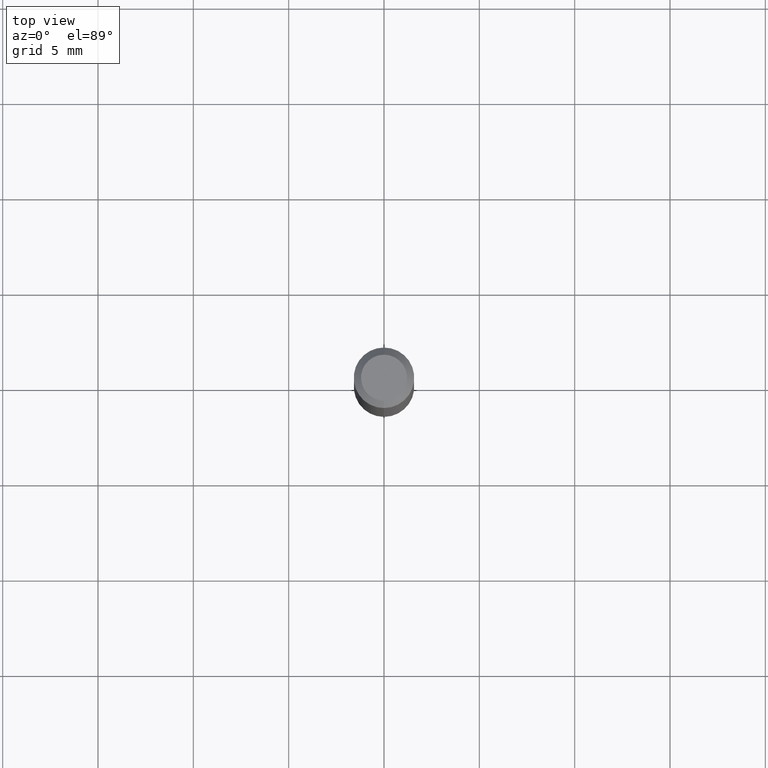
[diagram: clean part render]
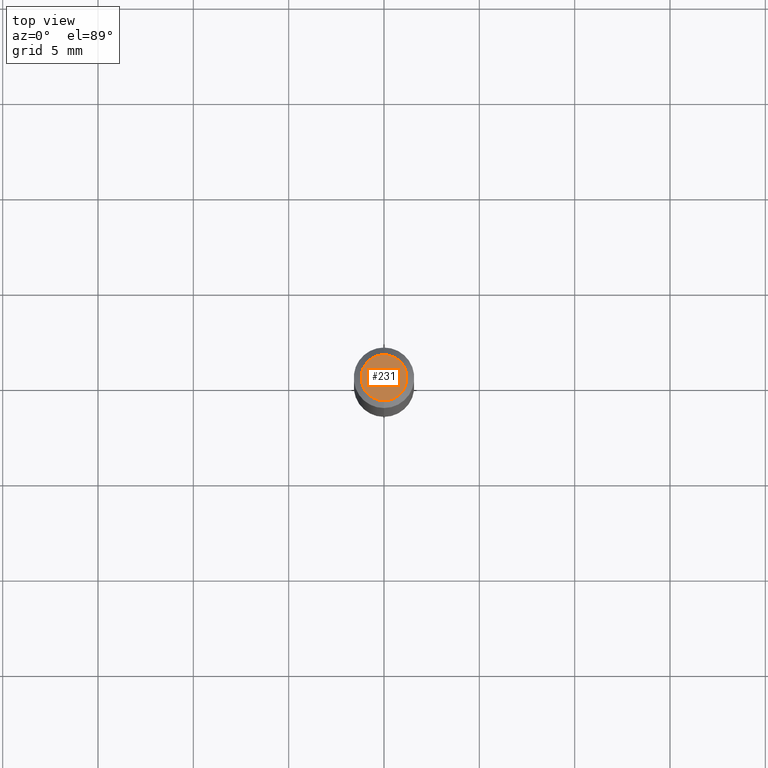
[diagram: same view with one face highlighted and labeled with its STEP entity id]
A machine part, top view. The second image highlights one B-rep face of the part: STEP entity #231.
In plain terms, the highlighted planar face has unit normal (0, -0, -1).
Its self-contained STEP definition (entity closure, byte-faithful):
#11 = CIRCLE ( 'NONE', #473, 0.04749999999999999362 ) ;
#15 = DIRECTION ( 'NONE',  ( -6.982962677686266711E-15, -1.000000000000000000, 3.491392881467327426E-15 ) ) ;
#36 = DIRECTION ( 'NONE',  ( -6.982962677686266711E-15, -1.000000000000000000, 3.491392881467327426E-15 ) ) ;
#47 = DIRECTION ( 'NONE',  ( -2.445530575640527241E-29, 3.491392881467327032E-15, 1.000000000000000000 ) ) ;
#72 = AXIS2_PLACEMENT_3D ( 'NONE', #237, #401, #36 ) ;
#140 = ORIENTED_EDGE ( 'NONE', *, *, #400, .T. ) ;
#145 = PLANE ( 'NONE',  #398 ) ;
#152 = FACE_OUTER_BOUND ( 'NONE', #482, .T. ) ;
#158 = CIRCLE ( 'NONE', #72, 0.04749999999999999362 ) ;
#182 = CARTESIAN_POINT ( 'NONE',  ( 3.840629472727447874E-16, 0.04749999999999999362, -1.947592745229184119E-16 ) ) ;
#193 = DIRECTION ( 'NONE',  ( 6.982962677686265922E-15, 1.000000000000000000, -3.491392881467327032E-15 ) ) ;
#231 = ADVANCED_FACE ( 'NONE', ( #152 ), #145, .F. ) ;
#237 = CARTESIAN_POINT ( 'NONE',  ( 7.072012868326764152E-46, -1.009644926629238683E-31, -2.891811265322037764E-17 ) ) ;
#260 = VERTEX_POINT ( 'NONE', #182 ) ;
#344 = CARTESIAN_POINT ( 'NONE',  ( 3.316907271900976096E-16, 0.04749999999999999362, -1.803002181963082200E-16 ) ) ;
#398 = AXIS2_PLACEMENT_3D ( 'NONE', #344, #430, #193 ) ;
#400 = EDGE_CURVE ( 'NONE', #480, #260, #158, .T. ) ;
#401 = DIRECTION ( 'NONE',  ( -2.445530575640527241E-29, 3.491392881467327032E-15, 1.000000000000000000 ) ) ;
#408 = ORIENTED_EDGE ( 'NONE', *, *, #448, .T. ) ;
#430 = DIRECTION ( 'NONE',  ( 2.445530575640526960E-29, -3.491392881467327032E-15, -1.000000000000000000 ) ) ;
#448 = EDGE_CURVE ( 'NONE', #260, #480, #11, .T. ) ;
#457 = CARTESIAN_POINT ( 'NONE',  ( -3.773273898774340269E-16, -0.04749999999999999362, 1.369230492164776443E-16 ) ) ;
#473 = AXIS2_PLACEMENT_3D ( 'NONE', #497, #47, #15 ) ;
#480 = VERTEX_POINT ( 'NONE', #457 ) ;
#482 = EDGE_LOOP ( 'NONE', ( #408, #140 ) ) ;
#497 = CARTESIAN_POINT ( 'NONE',  ( 7.072012868326764152E-46, -1.009644926629238683E-31, -2.891811265322037764E-17 ) ) ;